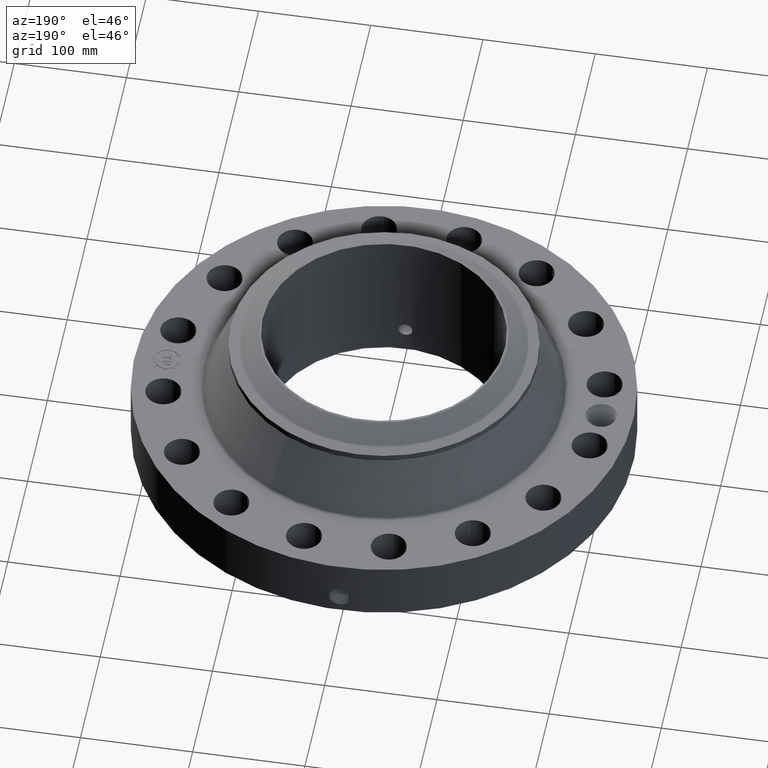
[diagram: clean part render]
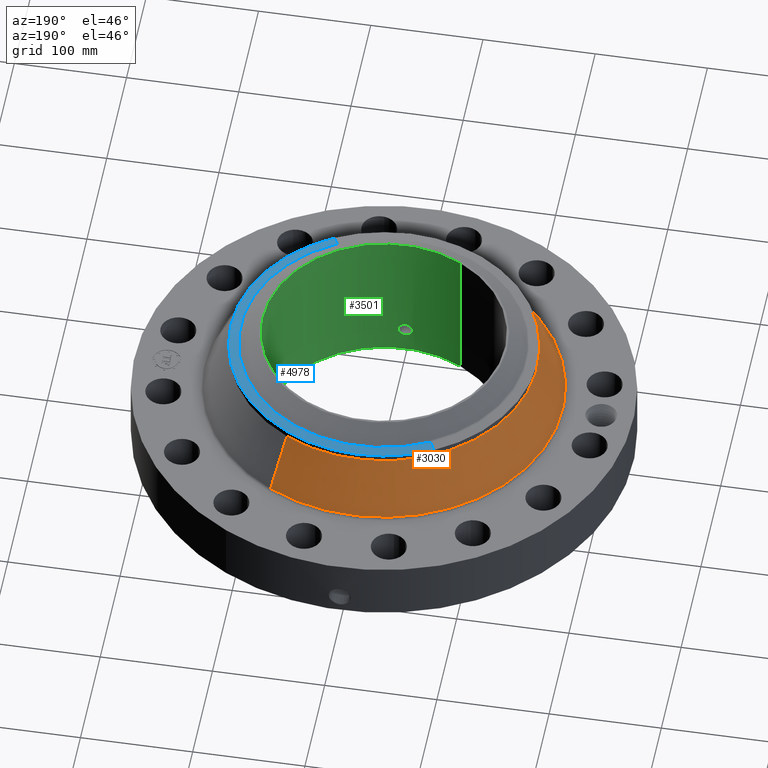
[diagram: same view with three faces highlighted in distinct colors, each labeled with its STEP entity id]
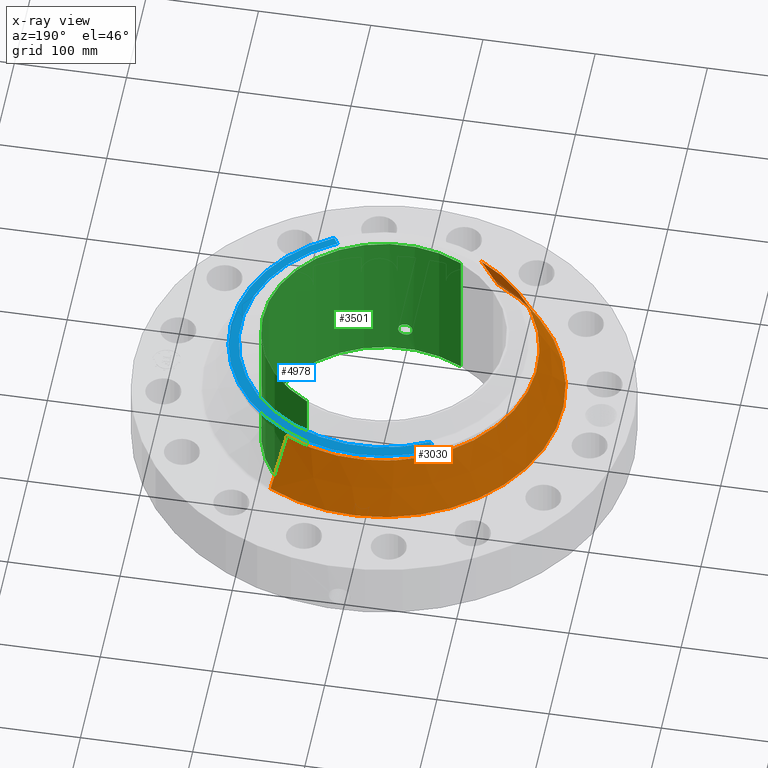
[diagram: x-ray of the same camera — body ghosted, the three highlighted faces saturated]
A machine part, auxiliary view with three faces highlighted in distinct colors.
The next image is the same camera in x-ray (body ghosted, the three faces saturated) — at least one of them is partly hidden behind the body in this view.
Their STEP definitions:

[orange] entity #3030 — the highlighted conical surface has half-angle 25.689 deg.
#2350=AXIS2_PLACEMENT_3D('Circle Axis2P3D',#2348,#2349,$) ;
#2991=AXIS2_PLACEMENT_3D('Cone Axis2P3D',#2988,#2989,#2990) ;
#3021=AXIS2_PLACEMENT_3D('Circle Axis2P3D',#3019,#3020,$) ;
#2326=CARTESIAN_POINT('Vertex',(3.00949732195,5.50884789636,2.43798173757)) ;
#2333=CARTESIAN_POINT('Vertex',(-3.00949732195,-5.50884789636,2.43798173757)) ;
#2348=CARTESIAN_POINT('Axis2P3D Location',(0.,0.,2.43798173757)) ;
#2988=CARTESIAN_POINT('Axis2P3D Location',(0.,0.,4.31374450254)) ;
#2993=CARTESIAN_POINT('Line Origine',(2.79320479598,5.11292708327,3.37586312006)) ;
#2997=CARTESIAN_POINT('Vertex',(2.57691227001,4.71700627018,4.31374450254)) ;
#3004=CARTESIAN_POINT('Vertex',(-2.57691227001,-4.71700627018,4.31374450254)) ;
#3007=CARTESIAN_POINT('Line Origine',(-2.79320479598,-5.11292708327,3.37586312006)) ;
#3019=CARTESIAN_POINT('Axis2P3D Location',(0.,0.,4.31374450254)) ;
#2349=DIRECTION('Axis2P3D Direction',(0.,0.,-0.0393700787402)) ;
#2989=DIRECTION('Axis2P3D Direction',(0.,0.,-0.0393700787402)) ;
#2990=DIRECTION('Axis2P3D XDirection',(-0.0188750212049,-0.0345504945626,0.)) ;
#2994=DIRECTION('Vector Direction',(0.00818204838788,0.0149771391125,-0.0354787610859)) ;
#3008=DIRECTION('Vector Direction',(-0.00818204838788,-0.0149771391125,-0.0354787610859)) ;
#3020=DIRECTION('Axis2P3D Direction',(0.,0.,-0.0393700787402)) ;
#2995=VECTOR('Line Direction',#2994,0.0393700787402) ;
#3009=VECTOR('Line Direction',#3008,0.0393700787402) ;
#3025=ORIENTED_EDGE('',*,*,#2352,.F.) ;
#3026=ORIENTED_EDGE('',*,*,#3011,.T.) ;
#3027=ORIENTED_EDGE('',*,*,#3023,.T.) ;
#3028=ORIENTED_EDGE('',*,*,#2999,.F.) ;
#3030=ADVANCED_FACE('PartBody',(#3029),#2992,.T.) ;
#2351=CIRCLE('generated circle',#2350,6.27729872445) ;
#3022=CIRCLE('generated circle',#3021,5.37500000002) ;
#2992=CONICAL_SURFACE('Cone',#2991,5.37500000002,0.448357007997) ;
#2352=EDGE_CURVE('',#2334,#2327,#2351,.T.) ;
#2999=EDGE_CURVE('',#2327,#2998,#2996,.F.) ;
#3011=EDGE_CURVE('',#2334,#3005,#3010,.F.) ;
#3023=EDGE_CURVE('',#3005,#2998,#3022,.T.) ;
#3024=EDGE_LOOP('',(#3025,#3026,#3027,#3028)) ;
#3029=FACE_OUTER_BOUND('',#3024,.T.) ;
#2996=LINE('Line',#2993,#2995) ;
#3010=LINE('Line',#3007,#3009) ;
#2327=VERTEX_POINT('',#2326) ;
#2334=VERTEX_POINT('',#2333) ;
#2998=VERTEX_POINT('',#2997) ;
#3005=VERTEX_POINT('',#3004) ;

[blue] entity #4978 — the highlighted conical surface has half-angle 80 deg.
#3796=AXIS2_PLACEMENT_3D('Circle Axis2P3D',#3794,#3795,$) ;
#3823=AXIS2_PLACEMENT_3D('Circle Axis2P3D',#3821,#3822,$) ;
#4950=AXIS2_PLACEMENT_3D('Cone Axis2P3D',#4947,#4948,#4949) ;
#4961=AXIS2_PLACEMENT_3D('Circle Axis2P3D',#4959,#4960,$) ;
#3791=CARTESIAN_POINT('Vertex',(2.57691227001,4.71700627018,4.54996497498)) ;
#3794=CARTESIAN_POINT('Axis2P3D Location',(0.,0.,4.54996497498)) ;
#3798=CARTESIAN_POINT('Vertex',(2.57691227001,-4.71700627018,4.54996497498)) ;
#3818=CARTESIAN_POINT('Vertex',(-2.57691227001,4.71700627018,4.54996497498)) ;
#3821=CARTESIAN_POINT('Axis2P3D Location',(0.,0.,4.54996497498)) ;
#4947=CARTESIAN_POINT('Axis2P3D Location',(0.,0.,4.61141601924)) ;
#4952=CARTESIAN_POINT('Line Origine',(-2.49337088607,4.56408479262,4.58069049711)) ;
#4956=CARTESIAN_POINT('Vertex',(-2.40982950212,4.41116331506,4.61141601924)) ;
#4959=CARTESIAN_POINT('Axis2P3D Location',(0.,0.,4.61141601924)) ;
#4963=CARTESIAN_POINT('Vertex',(2.40982950212,-4.41116331506,4.61141601924)) ;
#4966=CARTESIAN_POINT('Line Origine',(2.49337088607,-4.56408479262,4.58069049711)) ;
#3795=DIRECTION('Axis2P3D Direction',(0.,0.,-0.0393700787402)) ;
#3822=DIRECTION('Axis2P3D Direction',(0.,0.,-0.0393700787402)) ;
#4948=DIRECTION('Axis2P3D Direction',(-0.,-0.,-0.0393700787402)) ;
#4949=DIRECTION('Axis2P3D XDirection',(0.0188750212049,-0.0345504945626,0.)) ;
#4953=DIRECTION('Vector Direction',(-0.0185882672208,0.0340255949157,-0.00683654242783)) ;
#4960=DIRECTION('Axis2P3D Direction',(0.,0.,-0.0393700787402)) ;
#4967=DIRECTION('Vector Direction',(0.0185882672208,-0.0340255949157,-0.00683654242783)) ;
#4954=VECTOR('Line Direction',#4953,0.0393700787402) ;
#4968=VECTOR('Line Direction',#4967,0.0393700787402) ;
#4972=ORIENTED_EDGE('',*,*,#4958,.F.) ;
#4973=ORIENTED_EDGE('',*,*,#4965,.F.) ;
#4974=ORIENTED_EDGE('',*,*,#4970,.T.) ;
#4975=ORIENTED_EDGE('',*,*,#3800,.T.) ;
#4976=ORIENTED_EDGE('',*,*,#3825,.F.) ;
#4978=ADVANCED_FACE('PartBody',(#4977),#4951,.T.) ;
#3797=CIRCLE('generated circle',#3796,5.37500000002) ;
#3824=CIRCLE('generated circle',#3823,5.37500000002) ;
#4962=CIRCLE('generated circle',#4961,5.02649380994) ;
#4951=CONICAL_SURFACE('Cone',#4950,5.02649380994,1.3962634016) ;
#3800=EDGE_CURVE('',#3799,#3792,#3797,.F.) ;
#3825=EDGE_CURVE('',#3819,#3792,#3824,.T.) ;
#4958=EDGE_CURVE('',#4957,#3819,#4955,.T.) ;
#4965=EDGE_CURVE('',#4964,#4957,#4962,.F.) ;
#4970=EDGE_CURVE('',#4964,#3799,#4969,.T.) ;
#4971=EDGE_LOOP('',(#4972,#4973,#4974,#4975,#4976)) ;
#4977=FACE_OUTER_BOUND('',#4971,.T.) ;
#4955=LINE('Line',#4952,#4954) ;
#4969=LINE('Line',#4966,#4968) ;
#3792=VERTEX_POINT('',#3791) ;
#3799=VERTEX_POINT('',#3798) ;
#3819=VERTEX_POINT('',#3818) ;
#4957=VERTEX_POINT('',#4956) ;
#4964=VERTEX_POINT('',#4963) ;

[green] entity #3501 — the highlighted cylindrical surface (partial cylindrical patch) has radius 107.95 mm, axis along (0, 0, -1).
#2714=AXIS2_PLACEMENT_3D('Circle Axis2P3D',#2712,#2713,$) ;
#3432=AXIS2_PLACEMENT_3D('Cylinder Axis2P3D',#3429,#3430,#3431) ;
#3436=AXIS2_PLACEMENT_3D('Circle Axis2P3D',#3434,#3435,$) ;
#2712=CARTESIAN_POINT('Axis2P3D Location',(0.,0.,0.)) ;
#2716=CARTESIAN_POINT('Vertex',(2.03755853908,3.72972588805,-1.67844740731E-014)) ;
#2718=CARTESIAN_POINT('Vertex',(-2.03755853908,-3.72972588805,-1.67844740731E-014)) ;
#3429=CARTESIAN_POINT('Axis2P3D Location',(0.,0.,2.56500000001)) ;
#3434=CARTESIAN_POINT('Axis2P3D Location',(0.,0.,5.13000000002)) ;
#3438=CARTESIAN_POINT('Vertex',(2.03755853908,3.72972588805,5.13000000002)) ;
#3440=CARTESIAN_POINT('Vertex',(-2.03755853908,-3.72972588805,5.13000000002)) ;
#3443=CARTESIAN_POINT('Line Origine',(2.03755853908,3.72972588805,2.56500000001)) ;
#3448=CARTESIAN_POINT('Line Origine',(-2.03755853908,-3.72972588805,2.56500000001)) ;
#3460=CARTESIAN_POINT('Control Point',(0.219395640473,-4.24433334613,0.820143615352)) ;
#3461=CARTESIAN_POINT('Control Point',(0.20692185022,-4.24497813413,0.79731049545)) ;
#3462=CARTESIAN_POINT('Control Point',(0.191478963081,-4.24573045207,0.776102458608)) ;
#3463=CARTESIAN_POINT('Control Point',(0.173347039353,-4.2465321409,0.757031808557)) ;
#3464=CARTESIAN_POINT('Control Point',(0.112149472896,-4.24885047267,0.707559991513)) ;
#3465=CARTESIAN_POINT('Control Point',(0.035004265128,-4.25035667953,0.684031745925)) ;
#3466=CARTESIAN_POINT('Control Point',(-0.0195366265869,-4.25046953931,0.682387723979)) ;
#3467=CARTESIAN_POINT('Control Point',(-0.124114958845,-4.24881265556,0.70751788036)) ;
#3468=CARTESIAN_POINT('Control Point',(-0.203155646869,-4.24538131819,0.780401764323)) ;
#3469=CARTESIAN_POINT('Control Point',(-0.232140048712,-4.24369101348,0.826600983206)) ;
#3470=CARTESIAN_POINT('Control Point',(-0.255828648891,-4.24229815736,0.904763273694)) ;
#3471=CARTESIAN_POINT('Control Point',(-0.248303760656,-4.24274022708,0.984167029883)) ;
#3472=CARTESIAN_POINT('Control Point',(-0.242069484873,-4.2431119127,1.01076314918)) ;
#3473=CARTESIAN_POINT('Control Point',(-0.23232837046,-4.24366483488,1.03618318121)) ;
#3474=CARTESIAN_POINT('Control Point',(-0.219395640473,-4.24433334613,1.05985638466)) ;
#3475=CARTESIAN_POINT('Vertex',(0.219395640473,-4.24433334613,0.820143615352)) ;
#3477=CARTESIAN_POINT('Vertex',(-0.219395640473,-4.24433334613,1.05985638466)) ;
#3481=CARTESIAN_POINT('Control Point',(-0.219395640473,-4.24433334613,1.05985638466)) ;
#3482=CARTESIAN_POINT('Control Point',(-0.206921850218,-4.24497813413,1.08268950456)) ;
#3483=CARTESIAN_POINT('Control Point',(-0.191478963075,-4.24573045207,1.10389754141)) ;
#3484=CARTESIAN_POINT('Control Point',(-0.173347039365,-4.2465321409,1.12296819144)) ;
#3485=CARTESIAN_POINT('Control Point',(-0.112149472914,-4.24885047267,1.17244000848)) ;
#3486=CARTESIAN_POINT('Control Point',(-0.035004265152,-4.25035667953,1.19596825408)) ;
#3487=CARTESIAN_POINT('Control Point',(0.0195366265996,-4.25046953931,1.19761227603)) ;
#3488=CARTESIAN_POINT('Control Point',(0.124114958859,-4.24881265556,1.17248211964)) ;
#3489=CARTESIAN_POINT('Control Point',(0.203155646886,-4.24538131819,1.09959823567)) ;
#3490=CARTESIAN_POINT('Control Point',(0.232140048701,-4.24369101348,1.05339901683)) ;
#3491=CARTESIAN_POINT('Control Point',(0.255828648892,-4.24229815736,0.975236726332)) ;
#3492=CARTESIAN_POINT('Control Point',(0.248303760657,-4.24274022708,0.895832970128)) ;
#3493=CARTESIAN_POINT('Control Point',(0.242069484874,-4.2431119127,0.869236850828)) ;
#3494=CARTESIAN_POINT('Control Point',(0.232328370461,-4.24366483488,0.843816818802)) ;
#3495=CARTESIAN_POINT('Control Point',(0.219395640473,-4.24433334613,0.820143615352)) ;
#2713=DIRECTION('Axis2P3D Direction',(0.,0.,-0.0393700787402)) ;
#3430=DIRECTION('Axis2P3D Direction',(0.,0.,-0.0393700787402)) ;
#3431=DIRECTION('Axis2P3D XDirection',(-0.0188750212049,-0.0345504945626,0.)) ;
#3435=DIRECTION('Axis2P3D Direction',(0.,0.,-0.0393700787402)) ;
#3444=DIRECTION('Vector Direction',(0.,0.,-0.0393700787402)) ;
#3449=DIRECTION('Vector Direction',(0.,0.,-0.0393700787402)) ;
#3445=VECTOR('Line Direction',#3444,0.0393700787402) ;
#3450=VECTOR('Line Direction',#3449,0.0393700787402) ;
#3454=ORIENTED_EDGE('',*,*,#3442,.F.) ;
#3455=ORIENTED_EDGE('',*,*,#3447,.T.) ;
#3456=ORIENTED_EDGE('',*,*,#2720,.T.) ;
#3457=ORIENTED_EDGE('',*,*,#3452,.F.) ;
#3498=ORIENTED_EDGE('',*,*,#3479,.F.) ;
#3499=ORIENTED_EDGE('',*,*,#3496,.F.) ;
#3500=FACE_BOUND('',#3497,.T.) ;
#3501=ADVANCED_FACE('PartBody',(#3458,#3500),#3433,.F.) ;
#3459=B_SPLINE_CURVE_WITH_KNOTS('',5,(#3460,#3461,#3462,#3463,#3464,#3465,#3466,#3467,#3468,#3469,#3470,#3471,#3472,#3473,#3474),.UNSPECIFIED.,.F.,.U.,(6,3,3,3,6),(0.,4.67443701842,14.0216593845,23.3716206873,28.2180411071),.UNSPECIFIED.) ;
#3480=B_SPLINE_CURVE_WITH_KNOTS('',5,(#3481,#3482,#3483,#3484,#3485,#3486,#3487,#3488,#3489,#3490,#3491,#3492,#3493,#3494,#3495),.UNSPECIFIED.,.F.,.U.,(6,3,3,3,6),(0.,4.67443701922,14.0216593836,23.3716206889,28.2180411089),.UNSPECIFIED.) ;
#2715=CIRCLE('generated circle',#2714,4.25000000002) ;
#3437=CIRCLE('generated circle',#3436,4.25000000002) ;
#3433=CYLINDRICAL_SURFACE('generated cylinder',#3432,4.25000000002) ;
#2720=EDGE_CURVE('',#2717,#2719,#2715,.T.) ;
#3442=EDGE_CURVE('',#3439,#3441,#3437,.T.) ;
#3447=EDGE_CURVE('',#3439,#2717,#3446,.T.) ;
#3452=EDGE_CURVE('',#3441,#2719,#3451,.T.) ;
#3479=EDGE_CURVE('',#3476,#3478,#3459,.T.) ;
#3496=EDGE_CURVE('',#3478,#3476,#3480,.T.) ;
#3453=EDGE_LOOP('',(#3454,#3455,#3456,#3457)) ;
#3497=EDGE_LOOP('',(#3498,#3499)) ;
#3458=FACE_OUTER_BOUND('',#3453,.T.) ;
#3446=LINE('Line',#3443,#3445) ;
#3451=LINE('Line',#3448,#3450) ;
#2717=VERTEX_POINT('',#2716) ;
#2719=VERTEX_POINT('',#2718) ;
#3439=VERTEX_POINT('',#3438) ;
#3441=VERTEX_POINT('',#3440) ;
#3476=VERTEX_POINT('',#3475) ;
#3478=VERTEX_POINT('',#3477) ;